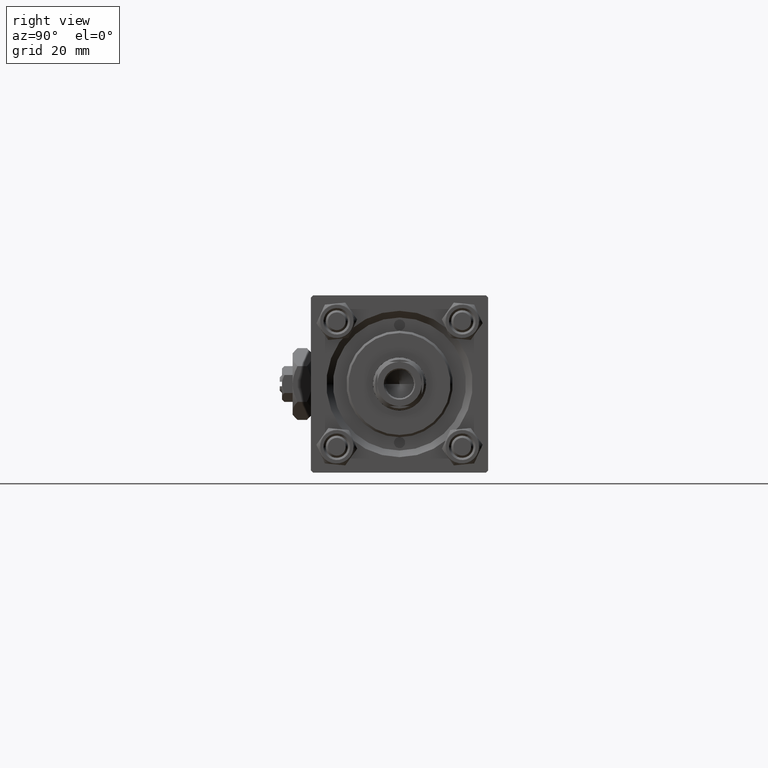
[diagram: clean part render]
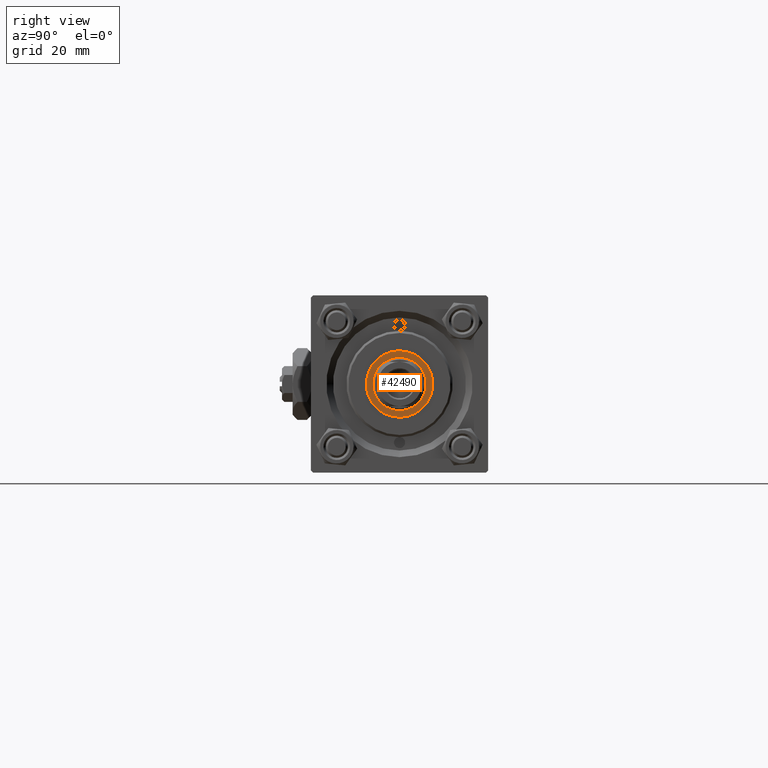
[diagram: same view with one face highlighted and labeled with its STEP entity id]
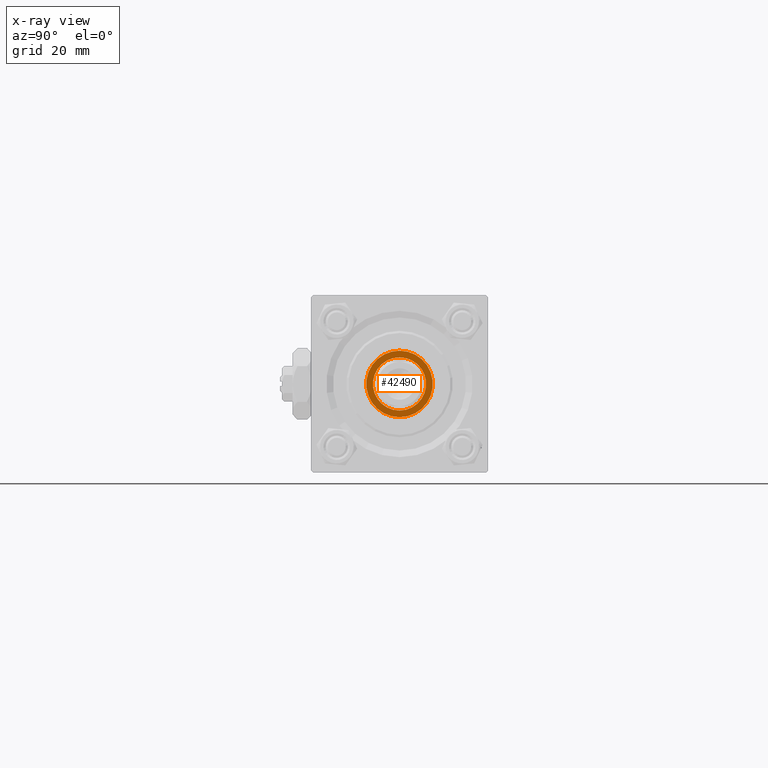
[diagram: x-ray of the same camera — body ghosted, the highlighted face saturated]
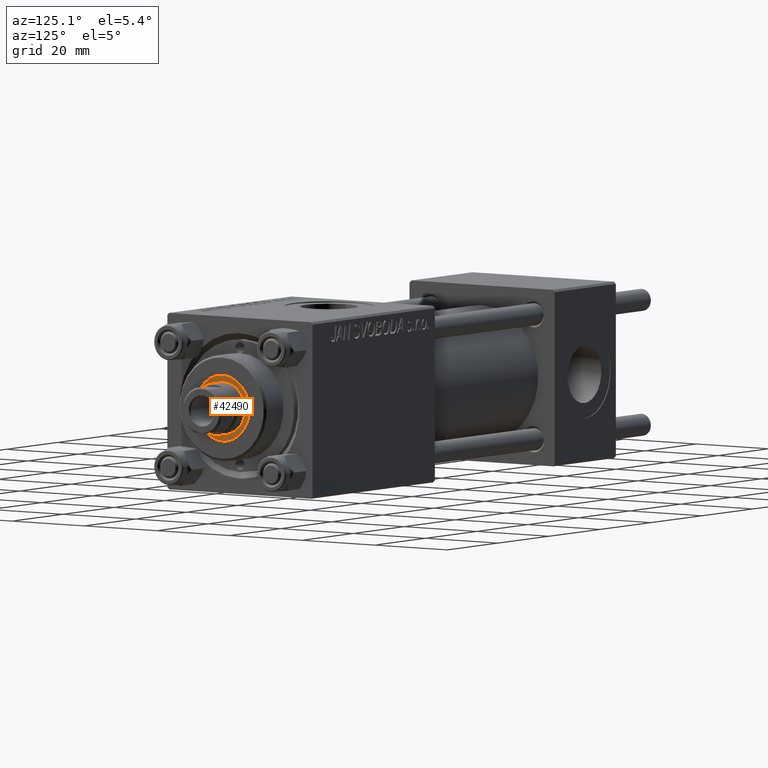
[diagram: same view with one face highlighted and labeled with its STEP entity id]
A machine part, right view. The second image highlights one B-rep face of the part: STEP entity #42490.
The next image is the same camera in x-ray: the body ghosted, the highlighted face saturated — about 0% of this face is hidden behind the body in this view.
A second angle (auxiliary view) of the same face is appended — the face is thin or edge-on in the first view.
In plain terms, the highlighted planar face has unit normal (1, 0, -0).
Its self-contained STEP definition (entity closure, byte-faithful):
#1912 = CARTESIAN_POINT ( 'NONE',  ( 0.000000000000000000, 0.000000000000000000, 35.20000000000000284 ) ) ;
#1970 = ORIENTED_EDGE ( 'NONE', *, *, #15504, .T. ) ;
#2746 = CIRCLE ( 'NONE', #45244, 7.500000000000000888 ) ;
#3764 = VERTEX_POINT ( 'NONE', #45553 ) ;
#5336 = EDGE_LOOP ( 'NONE', ( #38985, #14137 ) ) ;
#6438 = CIRCLE ( 'NONE', #23092, 7.500000000000000888 ) ;
#10425 = ORIENTED_EDGE ( 'NONE', *, *, #33490, .T. ) ;
#10508 = CARTESIAN_POINT ( 'NONE',  ( 0.000000000000000000, 0.000000000000000000, 35.20000000000000284 ) ) ;
#13052 = PLANE ( 'NONE',  #41010 ) ;
#13332 = CIRCLE ( 'NONE', #41692, 6.000000000000000888 ) ;
#13911 = DIRECTION ( 'NONE',  ( 0.000000000000000000, 0.000000000000000000, 1.000000000000000000 ) ) ;
#14029 = CARTESIAN_POINT ( 'NONE',  ( 0.000000000000000000, 0.000000000000000000, 35.20000000000000284 ) ) ;
#14137 = ORIENTED_EDGE ( 'NONE', *, *, #27394, .T. ) ;
#15504 = EDGE_CURVE ( 'NONE', #29442, #3764, #46776, .T. ) ;
#18588 = EDGE_CURVE ( 'NONE', #34418, #48925, #2746, .T. ) ;
#22115 = FACE_OUTER_BOUND ( 'NONE', #5336, .T. ) ;
#23092 = AXIS2_PLACEMENT_3D ( 'NONE', #10508, #13911, #45767 ) ;
#25108 = AXIS2_PLACEMENT_3D ( 'NONE', #1912, #41304, #49669 ) ;
#27186 = CARTESIAN_POINT ( 'NONE',  ( -7.500000000000000888, 9.184850993605149917E-16, 35.20000000000000284 ) ) ;
#27394 = EDGE_CURVE ( 'NONE', #48925, #34418, #6438, .T. ) ;
#29226 = DIRECTION ( 'NONE',  ( 1.000000000000000000, 0.000000000000000000, 0.000000000000000000 ) ) ;
#29442 = VERTEX_POINT ( 'NONE', #34283 ) ;
#31156 = EDGE_LOOP ( 'NONE', ( #10425, #1970 ) ) ;
#31245 = CARTESIAN_POINT ( 'NONE',  ( 0.000000000000000000, 0.000000000000000000, 35.20000000000000284 ) ) ;
#32398 = DIRECTION ( 'NONE',  ( 1.000000000000000000, 0.000000000000000000, -0.000000000000000000 ) ) ;
#33490 = EDGE_CURVE ( 'NONE', #3764, #29442, #13332, .T. ) ;
#34283 = CARTESIAN_POINT ( 'NONE',  ( -6.000000000000000888, 7.347880794884119736E-16, 35.20000000000000284 ) ) ;
#34418 = VERTEX_POINT ( 'NONE', #44739 ) ;
#35408 = DIRECTION ( 'NONE',  ( -0.000000000000000000, -0.000000000000000000, -1.000000000000000000 ) ) ;
#36569 = DIRECTION ( 'NONE',  ( 0.000000000000000000, 0.000000000000000000, 1.000000000000000000 ) ) ;
#38985 = ORIENTED_EDGE ( 'NONE', *, *, #18588, .T. ) ;
#41010 = AXIS2_PLACEMENT_3D ( 'NONE', #14029, #36569, #32398 ) ;
#41304 = DIRECTION ( 'NONE',  ( -0.000000000000000000, -0.000000000000000000, -1.000000000000000000 ) ) ;
#41692 = AXIS2_PLACEMENT_3D ( 'NONE', #31245, #35408, #47155 ) ;
#41960 = FACE_BOUND ( 'NONE', #31156, .T. ) ;
#42490 = ADVANCED_FACE ( 'NONE', ( #22115, #41960 ), #13052, .T. ) ;
#44739 = CARTESIAN_POINT ( 'NONE',  ( 7.500000000000000888, 0.000000000000000000, 35.20000000000000284 ) ) ;
#45244 = AXIS2_PLACEMENT_3D ( 'NONE', #49065, #45403, #29226 ) ;
#45403 = DIRECTION ( 'NONE',  ( 0.000000000000000000, 0.000000000000000000, 1.000000000000000000 ) ) ;
#45553 = CARTESIAN_POINT ( 'NONE',  ( 6.000000000000000888, 0.000000000000000000, 35.20000000000000284 ) ) ;
#45767 = DIRECTION ( 'NONE',  ( 1.000000000000000000, 0.000000000000000000, 0.000000000000000000 ) ) ;
#46776 = CIRCLE ( 'NONE', #25108, 6.000000000000000888 ) ;
#47155 = DIRECTION ( 'NONE',  ( 1.000000000000000000, 0.000000000000000000, 0.000000000000000000 ) ) ;
#48925 = VERTEX_POINT ( 'NONE', #27186 ) ;
#49065 = CARTESIAN_POINT ( 'NONE',  ( 0.000000000000000000, 0.000000000000000000, 35.20000000000000284 ) ) ;
#49669 = DIRECTION ( 'NONE',  ( 1.000000000000000000, 0.000000000000000000, 0.000000000000000000 ) ) ;